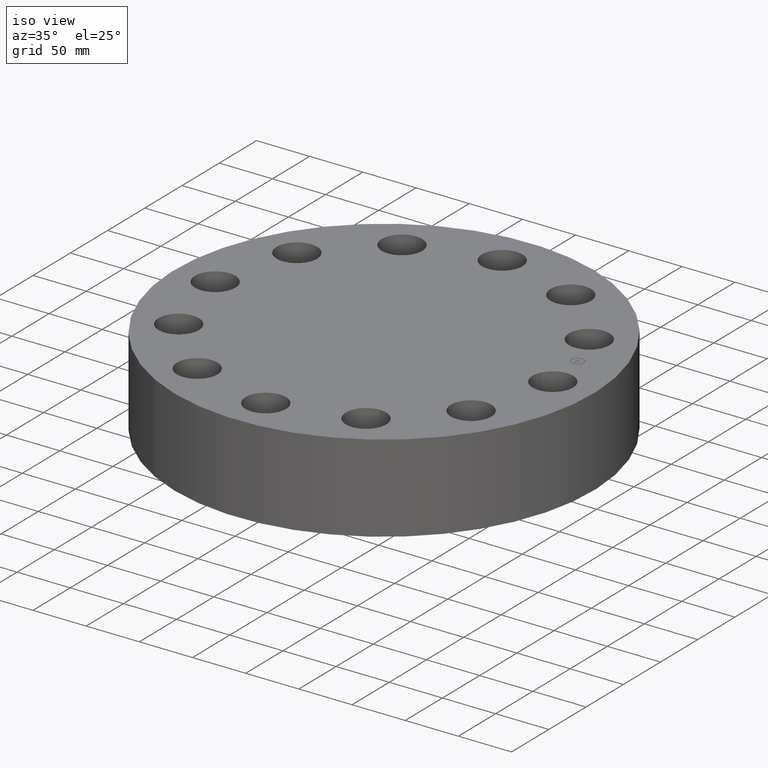
[diagram: clean part render]
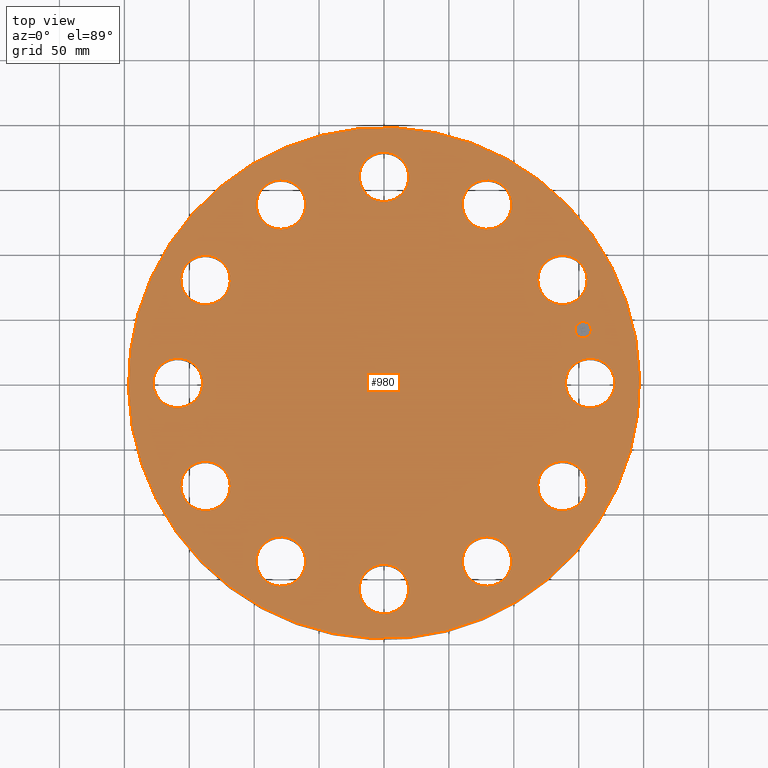
[diagram: tour spotlight — one face highlighted and labeled with its STEP entity id]
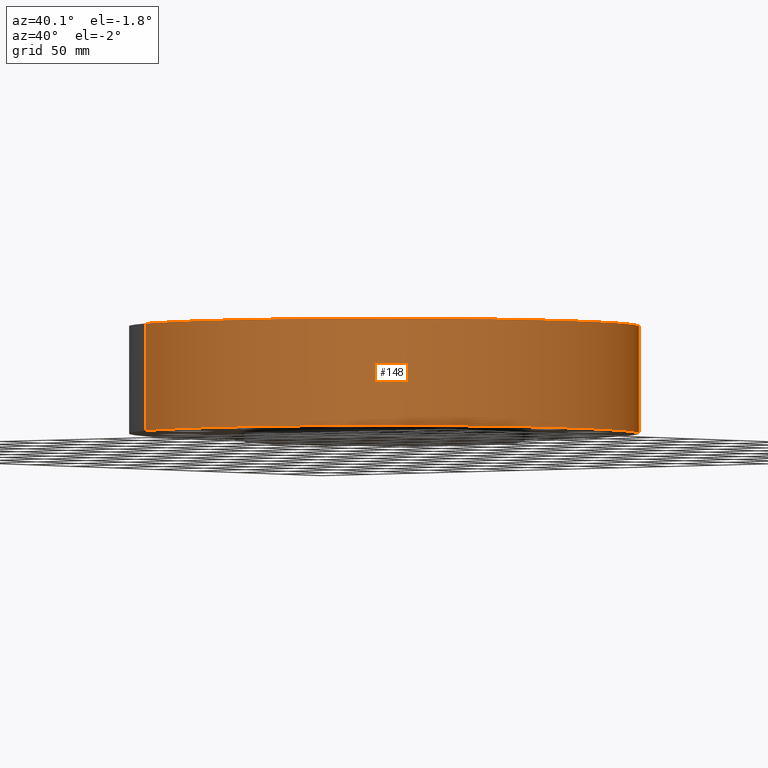
[diagram: tour spotlight — one face highlighted and labeled with its STEP entity id]
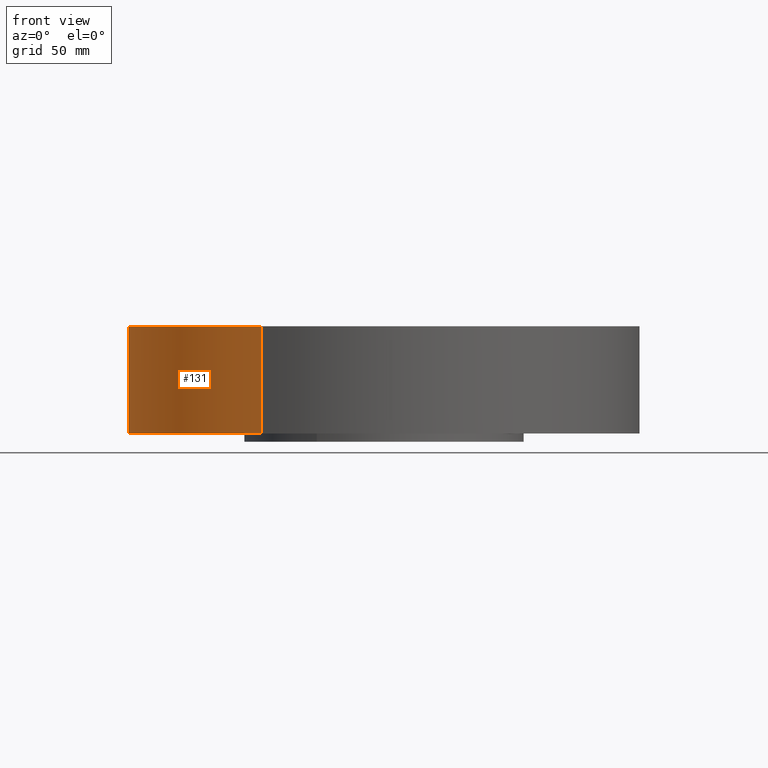
[diagram: tour spotlight — one face highlighted and labeled with its STEP entity id]
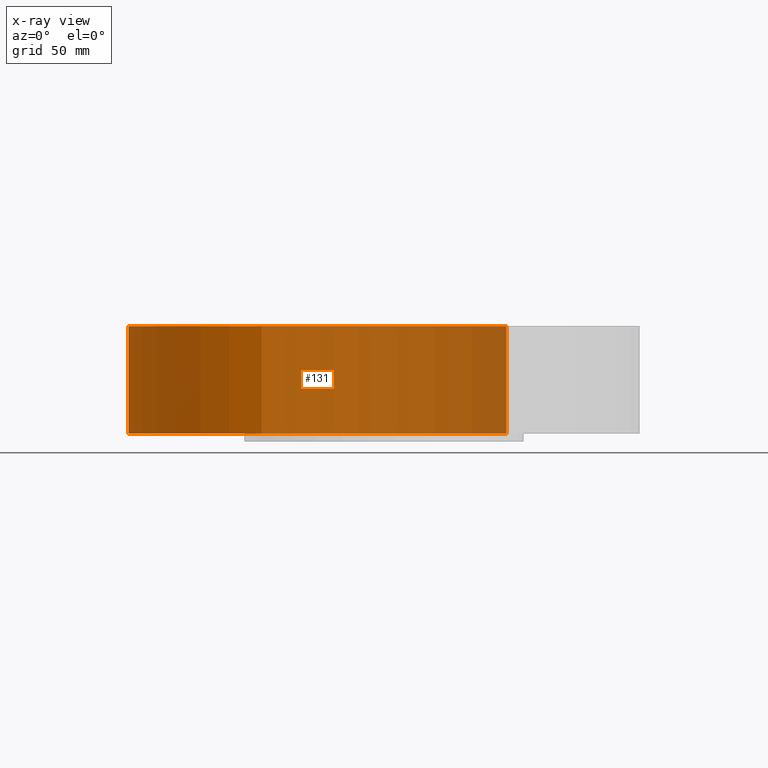
[diagram: x-ray of the same camera — body ghosted, this tour face saturated]
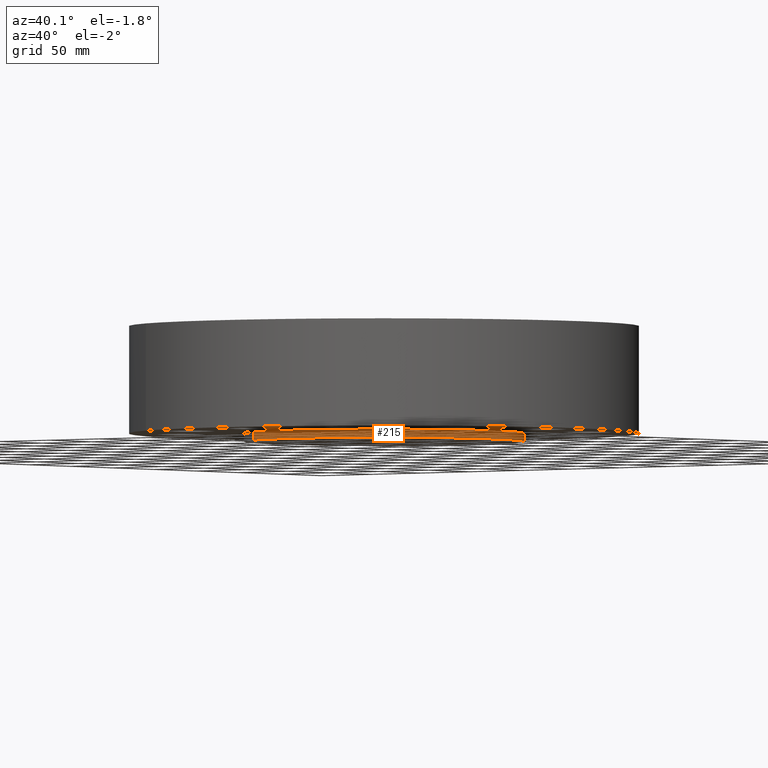
[diagram: tour spotlight — one face highlighted and labeled with its STEP entity id]
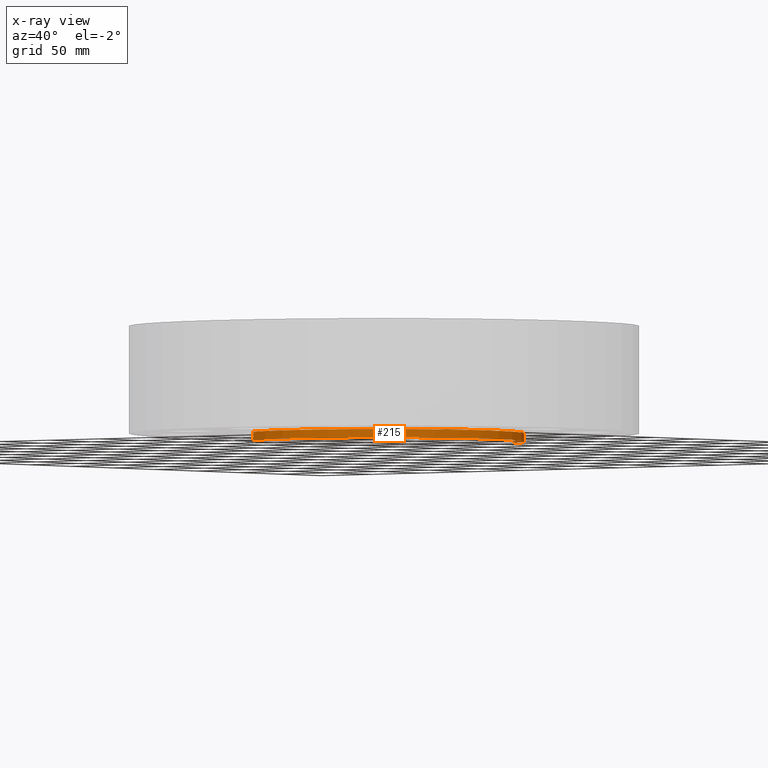
[diagram: x-ray of the same camera — body ghosted, this tour face saturated]
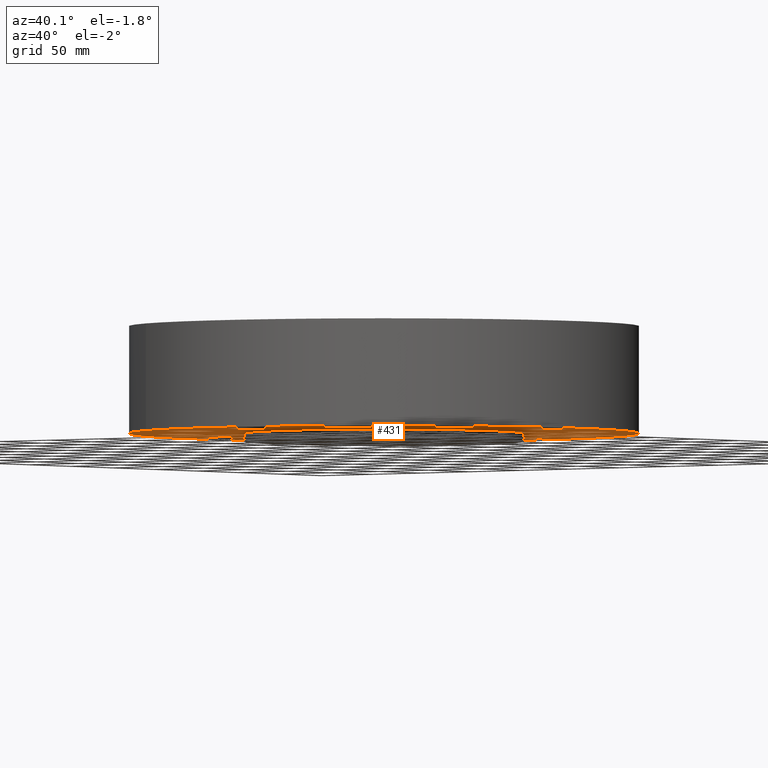
[diagram: tour spotlight — one face highlighted and labeled with its STEP entity id]
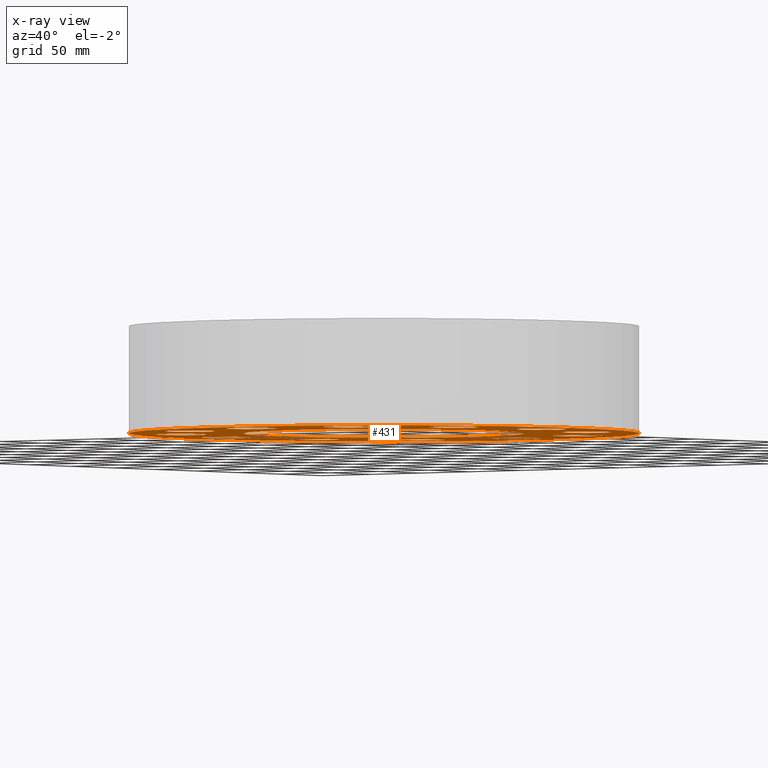
[diagram: x-ray of the same camera — body ghosted, this tour face saturated]
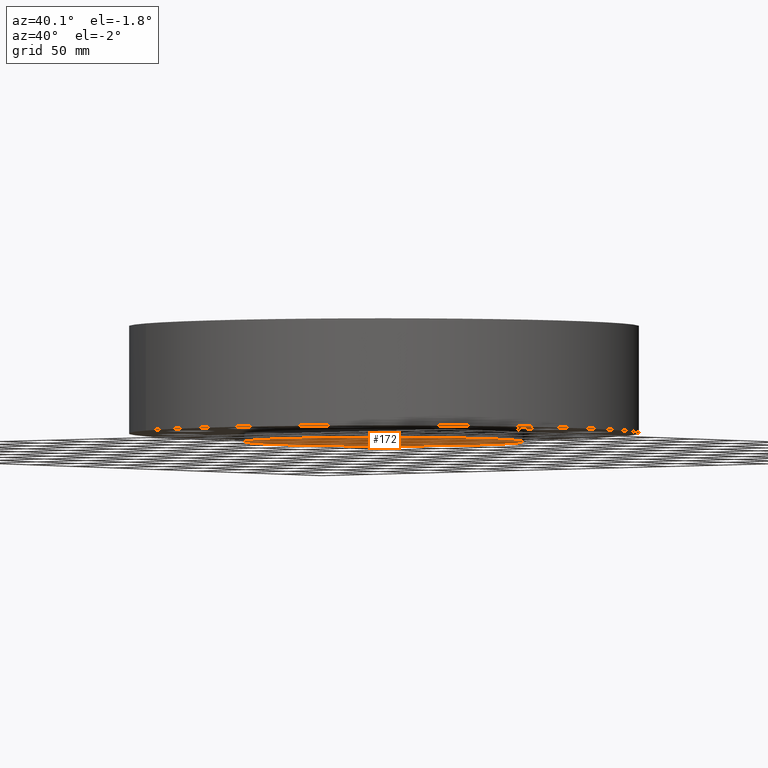
[diagram: tour spotlight — one face highlighted and labeled with its STEP entity id]
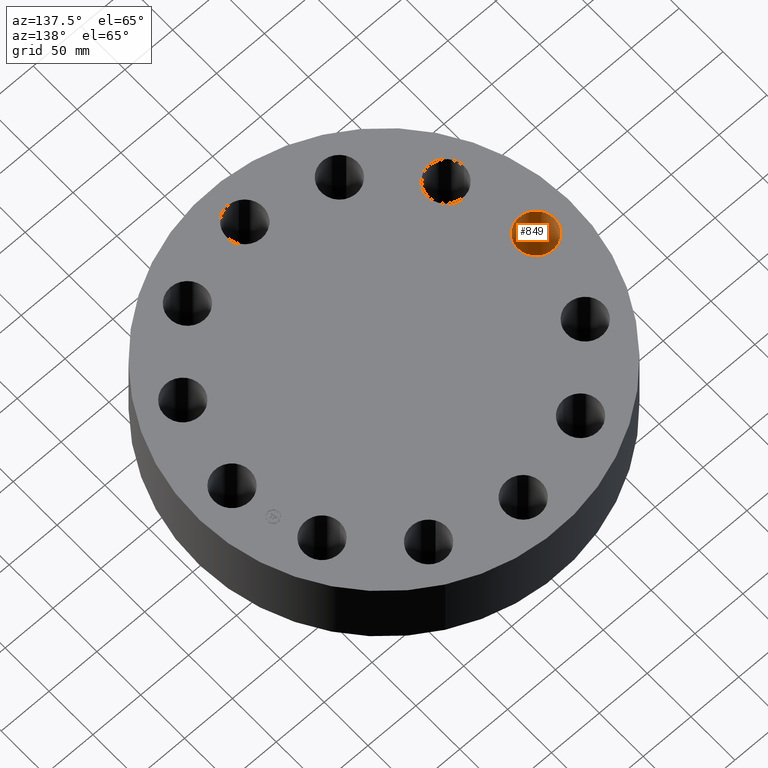
[diagram: tour spotlight — one face highlighted and labeled with its STEP entity id]
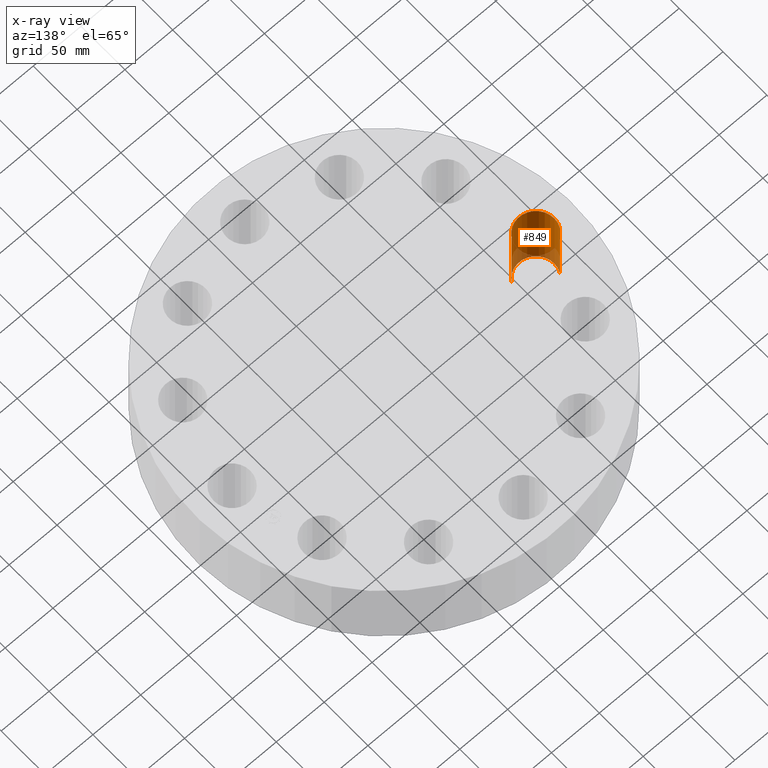
[diagram: x-ray of the same camera — body ghosted, this tour face saturated]
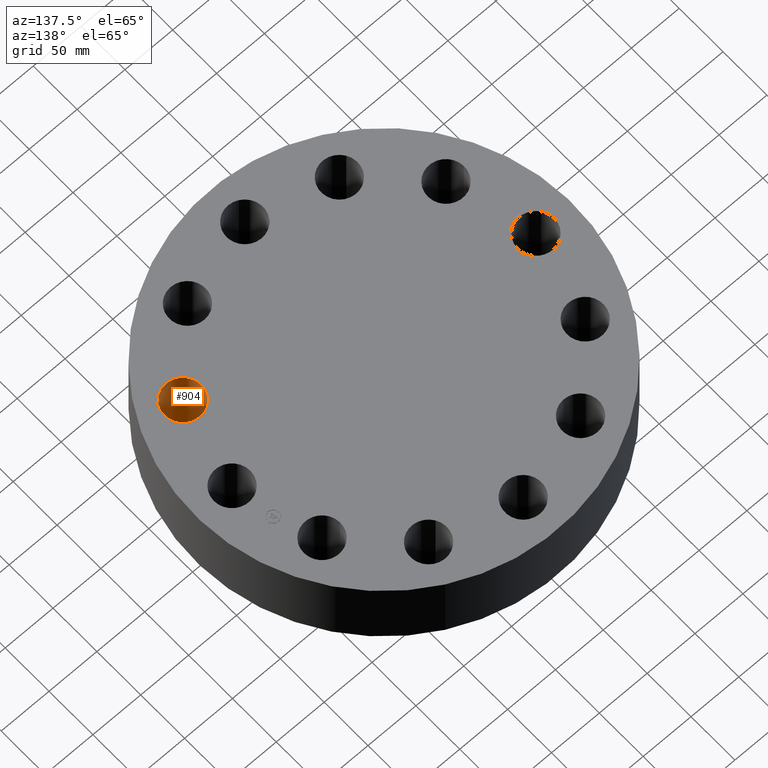
[diagram: tour spotlight — one face highlighted and labeled with its STEP entity id]
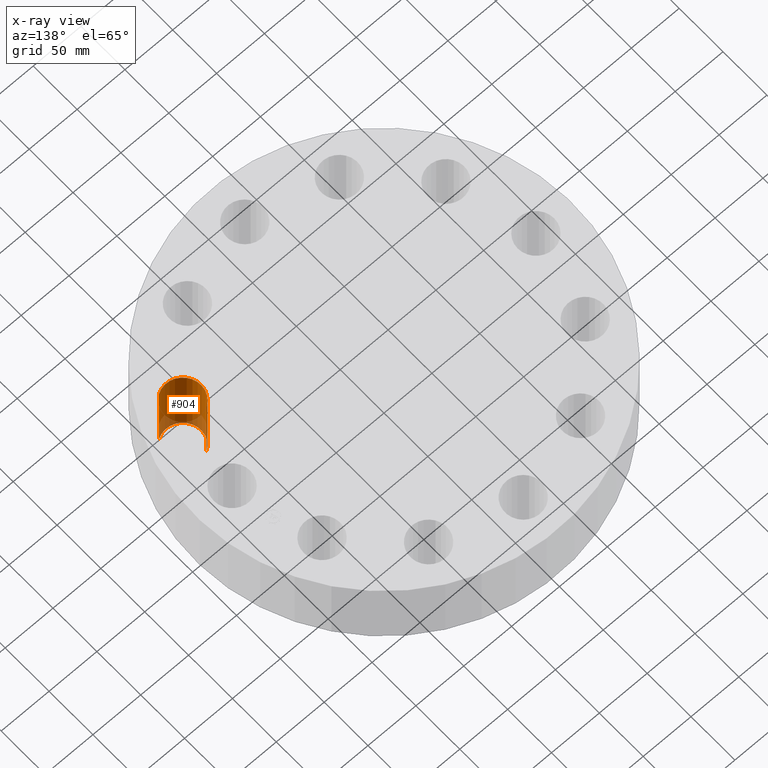
[diagram: x-ray of the same camera — body ghosted, this tour face saturated]
A machine part: a face-by-face anatomy tour. The part has 416 B-rep faces; the first image is the clean iso view, then the 8 largest visible faces are spotlighted one at a time (largest first), each with its STEP entity span.

Face 1 — top view, entity #980. In plain terms, the highlighted planar face has unit normal (0, 0, -1).
Definition (entity closure, byte-faithful):
#65=AXIS2_PLACEMENT_3D('Circle Axis2P3D',#63,#64,$) ;
#82=AXIS2_PLACEMENT_3D('Circle Axis2P3D',#80,#81,$) ;
#115=AXIS2_PLACEMENT_3D('Circle Axis2P3D',#113,#114,$) ;
#139=AXIS2_PLACEMENT_3D('Circle Axis2P3D',#137,#138,$) ;
#453=AXIS2_PLACEMENT_3D('Circle Axis2P3D',#451,#452,$) ;
#465=AXIS2_PLACEMENT_3D('Circle Axis2P3D',#463,#464,$) ;
#496=AXIS2_PLACEMENT_3D('Circle Axis2P3D',#494,#495,$) ;
#508=AXIS2_PLACEMENT_3D('Circle Axis2P3D',#506,#507,$) ;
#539=AXIS2_PLACEMENT_3D('Circle Axis2P3D',#537,#538,$) ;
#551=AXIS2_PLACEMENT_3D('Circle Axis2P3D',#549,#550,$) ;
#582=AXIS2_PLACEMENT_3D('Circle Axis2P3D',#580,#581,$) ;
#594=AXIS2_PLACEMENT_3D('Circle Axis2P3D',#592,#593,$) ;
#625=AXIS2_PLACEMENT_3D('Circle Axis2P3D',#623,#624,$) ;
#637=AXIS2_PLACEMENT_3D('Circle Axis2P3D',#635,#636,$) ;
#668=AXIS2_PLACEMENT_3D('Circle Axis2P3D',#666,#667,$) ;
#680=AXIS2_PLACEMENT_3D('Circle Axis2P3D',#678,#679,$) ;
#711=AXIS2_PLACEMENT_3D('Circle Axis2P3D',#709,#710,$) ;
#723=AXIS2_PLACEMENT_3D('Circle Axis2P3D',#721,#722,$) ;
#754=AXIS2_PLACEMENT_3D('Circle Axis2P3D',#752,#753,$) ;
#766=AXIS2_PLACEMENT_3D('Circle Axis2P3D',#764,#765,$) ;
#797=AXIS2_PLACEMENT_3D('Circle Axis2P3D',#795,#796,$) ;
#809=AXIS2_PLACEMENT_3D('Circle Axis2P3D',#807,#808,$) ;
#840=AXIS2_PLACEMENT_3D('Circle Axis2P3D',#838,#839,$) ;
#852=AXIS2_PLACEMENT_3D('Circle Axis2P3D',#850,#851,$) ;
#883=AXIS2_PLACEMENT_3D('Circle Axis2P3D',#881,#882,$) ;
#895=AXIS2_PLACEMENT_3D('Circle Axis2P3D',#893,#894,$) ;
#908=AXIS2_PLACEMENT_3D('Plane Axis2P3D',#905,#906,#907) ;
#964=AXIS2_PLACEMENT_3D('Circle Axis2P3D',#962,#963,$) ;
#973=AXIS2_PLACEMENT_3D('Circle Axis2P3D',#971,#972,$) ;
#46=CARTESIAN_POINT('Vertex',(5.5918130786,0.359569153955,3.25000000001)) ;
#60=CARTESIAN_POINT('Vertex',(6.90818692145,-0.359569153955,3.25000000001)) ;
#63=CARTESIAN_POINT('Axis2P3D Location',(6.25000000003,0.,3.25000000001)) ;
#80=CARTESIAN_POINT('Axis2P3D Location',(6.25000000003,0.,3.25000000001)) ;
#110=CARTESIAN_POINT('Vertex',(-3.7155479242,-6.80126485468,3.25000000001)) ;
#113=CARTESIAN_POINT('Axis2P3D Location',(0.,0.,3.25000000001)) ;
#117=CARTESIAN_POINT('Vertex',(3.7155479242,6.80126485468,3.25000000001)) ;
#137=CARTESIAN_POINT('Axis2P3D Location',(0.,0.,3.25000000001)) ;
#441=CARTESIAN_POINT('Vertex',(-5.02243675626,2.48451051756,3.25000000001)) ;
#448=CARTESIAN_POINT('Vertex',(-5.80288079109,3.76548948246,3.25000000001)) ;
#451=CARTESIAN_POINT('Axis2P3D Location',(-5.41265877367,3.12500000001,3.25000000001)) ;
#463=CARTESIAN_POINT('Axis2P3D Location',(-5.41265877367,3.12500000001,3.25000000001)) ;
#484=CARTESIAN_POINT('Vertex',(3.10730256104,-4.66286760231,3.25000000001)) ;
#491=CARTESIAN_POINT('Vertex',(3.14269743898,-6.16244994504,3.25000000001)) ;
#494=CARTESIAN_POINT('Axis2P3D Location',(3.12500000001,-5.41265877367,3.25000000001)) ;
#506=CARTESIAN_POINT('Axis2P3D Location',(3.12500000001,-5.41265877367,3.25000000001)) ;
#527=CARTESIAN_POINT('Vertex',(-3.10730256104,4.66286760231,3.25000000001)) ;
#534=CARTESIAN_POINT('Vertex',(-3.14269743898,6.16244994504,3.25000000001)) ;
#537=CARTESIAN_POINT('Axis2P3D Location',(-3.12500000001,5.41265877367,3.25000000001)) ;
#549=CARTESIAN_POINT('Axis2P3D Location',(-3.12500000001,5.41265877367,3.25000000001)) ;
#570=CARTESIAN_POINT('Vertex',(0.359569153955,-5.5918130786,3.25000000001)) ;
#577=CARTESIAN_POINT('Vertex',(-0.359569153955,-6.90818692145,3.25000000001)) ;
#580=CARTESIAN_POINT('Axis2P3D Location',(-7.3626281347E-016,-6.25000000003,3.25000000001)) ;
#592=CARTESIAN_POINT('Axis2P3D Location',(-7.3626281347E-016,-6.25000000003,3.25000000001)) ;
#613=CARTESIAN_POINT('Vertex',(-0.359569153955,5.5918130786,3.25000000001)) ;
#620=CARTESIAN_POINT('Vertex',(0.359569153955,6.90818692145,3.25000000001)) ;
#623=CARTESIAN_POINT('Axis2P3D Location',(-1.14810637421E-015,6.25000000003,3.25000000001)) ;
#635=CARTESIAN_POINT('Axis2P3D Location',(-1.14810637421E-015,6.25000000003,3.25000000001)) ;
#656=CARTESIAN_POINT('Vertex',(-2.48451051756,-5.02243675626,3.25000000001)) ;
#663=CARTESIAN_POINT('Vertex',(-3.76548948246,-5.80288079109,3.25000000001)) ;
#666=CARTESIAN_POINT('Axis2P3D Location',(-3.12500000001,-5.41265877367,3.25000000001)) ;
#678=CARTESIAN_POINT('Axis2P3D Location',(-3.12500000001,-5.41265877367,3.25000000001)) ;
#699=CARTESIAN_POINT('Vertex',(2.48451051756,5.02243675626,3.25000000001)) ;
#706=CARTESIAN_POINT('Vertex',(3.76548948246,5.80288079109,3.25000000001)) ;
#709=CARTESIAN_POINT('Axis2P3D Location',(3.12500000001,5.41265877367,3.25000000001)) ;
#721=CARTESIAN_POINT('Axis2P3D Location',(3.12500000001,5.41265877367,3.25000000001)) ;
#742=CARTESIAN_POINT('Vertex',(-4.66286760231,-3.10730256104,3.25000000001)) ;
#749=CARTESIAN_POINT('Vertex',(-6.16244994504,-3.14269743898,3.25000000001)) ;
#752=CARTESIAN_POINT('Axis2P3D Location',(-5.41265877367,-3.12500000001,3.25000000001)) ;
#764=CARTESIAN_POINT('Axis2P3D Location',(-5.41265877367,-3.12500000001,3.25000000001)) ;
#785=CARTESIAN_POINT('Vertex',(4.66286760231,3.10730256104,3.25000000001)) ;
#792=CARTESIAN_POINT('Vertex',(6.16244994504,3.14269743898,3.25000000001)) ;
#795=CARTESIAN_POINT('Axis2P3D Location',(5.41265877367,3.12500000001,3.25000000001)) ;
#807=CARTESIAN_POINT('Axis2P3D Location',(5.41265877367,3.12500000001,3.25000000001)) ;
#828=CARTESIAN_POINT('Vertex',(-5.5918130786,-0.359569153955,3.25000000001)) ;
#835=CARTESIAN_POINT('Vertex',(-6.90818692145,0.359569153955,3.25000000001)) ;
#838=CARTESIAN_POINT('Axis2P3D Location',(-6.25000000003,-7.6540424947E-016,3.25000000001)) ;
#850=CARTESIAN_POINT('Axis2P3D Location',(-6.25000000003,-7.6540424947E-016,3.25000000001)) ;
#871=CARTESIAN_POINT('Vertex',(5.02243675626,-2.48451051756,3.25000000001)) ;
#878=CARTESIAN_POINT('Vertex',(5.80288079109,-3.76548948246,3.25000000001)) ;
#881=CARTESIAN_POINT('Axis2P3D Location',(5.41265877367,-3.12500000001,3.25000000001)) ;
#893=CARTESIAN_POINT('Axis2P3D Location',(5.41265877367,-3.12500000001,3.25000000001)) ;
#905=CARTESIAN_POINT('Axis2P3D Location',(0.,7.75000000003,3.25000000001)) ;
#962=CARTESIAN_POINT('Axis2P3D Location',(6.03703641433,1.6176190319,3.25000000001)) ;
#966=CARTESIAN_POINT('Vertex',(5.97297870067,1.8566856739,3.25000000001)) ;
#968=CARTESIAN_POINT('Vertex',(6.10109412799,1.37855238989,3.25000000001)) ;
#971=CARTESIAN_POINT('Axis2P3D Location',(6.03703641433,1.6176190319,3.25000000001)) ;
#64=DIRECTION('Axis2P3D Direction',(0.,-0.,-0.0393700787402)) ;
#81=DIRECTION('Axis2P3D Direction',(0.,-0.,-0.0393700787402)) ;
#114=DIRECTION('Axis2P3D Direction',(0.,0.,-0.0393700787402)) ;
#138=DIRECTION('Axis2P3D Direction',(0.,0.,-0.0393700787402)) ;
#452=DIRECTION('Axis2P3D Direction',(0.,0.,-0.0393700787402)) ;
#464=DIRECTION('Axis2P3D Direction',(0.,0.,-0.0393700787402)) ;
#495=DIRECTION('Axis2P3D Direction',(0.,-0.,-0.0393700787402)) ;
#507=DIRECTION('Axis2P3D Direction',(0.,-0.,-0.0393700787402)) ;
#538=DIRECTION('Axis2P3D Direction',(0.,0.,-0.0393700787402)) ;
#550=DIRECTION('Axis2P3D Direction',(0.,0.,-0.0393700787402)) ;
#581=DIRECTION('Axis2P3D Direction',(0.,-0.,-0.0393700787402)) ;
#593=DIRECTION('Axis2P3D Direction',(0.,-0.,-0.0393700787402)) ;
#624=DIRECTION('Axis2P3D Direction',(0.,0.,-0.0393700787402)) ;
#636=DIRECTION('Axis2P3D Direction',(0.,0.,-0.0393700787402)) ;
#667=DIRECTION('Axis2P3D Direction',(-0.,0.,-0.0393700787402)) ;
#679=DIRECTION('Axis2P3D Direction',(-0.,0.,-0.0393700787402)) ;
#710=DIRECTION('Axis2P3D Direction',(0.,0.,-0.0393700787402)) ;
#722=DIRECTION('Axis2P3D Direction',(0.,0.,-0.0393700787402)) ;
#753=DIRECTION('Axis2P3D Direction',(-0.,0.,-0.0393700787402)) ;
#765=DIRECTION('Axis2P3D Direction',(-0.,0.,-0.0393700787402)) ;
#796=DIRECTION('Axis2P3D Direction',(0.,0.,-0.0393700787402)) ;
#808=DIRECTION('Axis2P3D Direction',(0.,0.,-0.0393700787402)) ;
#839=DIRECTION('Axis2P3D Direction',(-0.,0.,-0.0393700787402)) ;
#851=DIRECTION('Axis2P3D Direction',(-0.,0.,-0.0393700787402)) ;
#882=DIRECTION('Axis2P3D Direction',(0.,-0.,-0.0393700787402)) ;
#894=DIRECTION('Axis2P3D Direction',(0.,-0.,-0.0393700787402)) ;
#906=DIRECTION('Axis2P3D Direction',(0.,0.,-0.0393700787402)) ;
#907=DIRECTION('Axis2P3D XDirection',(0.0393700787402,0.,0.)) ;
#963=DIRECTION('Axis2P3D Direction',(0.,0.,-0.0393700787402)) ;
#972=DIRECTION('Axis2P3D Direction',(0.,0.,-0.0393700787402)) ;
#911=ORIENTED_EDGE('',*,*,#141,.F.) ;
#912=ORIENTED_EDGE('',*,*,#119,.F.) ;
#915=ORIENTED_EDGE('',*,*,#67,.T.) ;
#916=ORIENTED_EDGE('',*,*,#84,.T.) ;
#919=ORIENTED_EDGE('',*,*,#897,.T.) ;
#920=ORIENTED_EDGE('',*,*,#885,.T.) ;
#923=ORIENTED_EDGE('',*,*,#510,.T.) ;
#924=ORIENTED_EDGE('',*,*,#498,.T.) ;
#927=ORIENTED_EDGE('',*,*,#596,.T.) ;
#928=ORIENTED_EDGE('',*,*,#584,.T.) ;
#931=ORIENTED_EDGE('',*,*,#682,.T.) ;
#932=ORIENTED_EDGE('',*,*,#670,.T.) ;
#935=ORIENTED_EDGE('',*,*,#768,.T.) ;
#936=ORIENTED_EDGE('',*,*,#756,.T.) ;
#939=ORIENTED_EDGE('',*,*,#854,.T.) ;
#940=ORIENTED_EDGE('',*,*,#842,.T.) ;
#943=ORIENTED_EDGE('',*,*,#467,.T.) ;
#944=ORIENTED_EDGE('',*,*,#455,.T.) ;
#947=ORIENTED_EDGE('',*,*,#553,.T.) ;
#948=ORIENTED_EDGE('',*,*,#541,.T.) ;
#951=ORIENTED_EDGE('',*,*,#639,.T.) ;
#952=ORIENTED_EDGE('',*,*,#627,.T.) ;
#955=ORIENTED_EDGE('',*,*,#725,.T.) ;
#956=ORIENTED_EDGE('',*,*,#713,.T.) ;
#959=ORIENTED_EDGE('',*,*,#811,.T.) ;
#960=ORIENTED_EDGE('',*,*,#799,.T.) ;
#977=ORIENTED_EDGE('',*,*,#970,.T.) ;
#978=ORIENTED_EDGE('',*,*,#975,.T.) ;
#917=FACE_BOUND('',#914,.T.) ;
#921=FACE_BOUND('',#918,.T.) ;
#925=FACE_BOUND('',#922,.T.) ;
#929=FACE_BOUND('',#926,.T.) ;
#933=FACE_BOUND('',#930,.T.) ;
#937=FACE_BOUND('',#934,.T.) ;
#941=FACE_BOUND('',#938,.T.) ;
#945=FACE_BOUND('',#942,.T.) ;
#949=FACE_BOUND('',#946,.T.) ;
#953=FACE_BOUND('',#950,.T.) ;
#957=FACE_BOUND('',#954,.T.) ;
#961=FACE_BOUND('',#958,.T.) ;
#979=FACE_BOUND('',#976,.T.) ;
#980=ADVANCED_FACE('PartBody',(#913,#917,#921,#925,#929,#933,#937,#941,#945,#949,#953,#957,#961,#979),#909,.F.) ;
#66=CIRCLE('generated circle',#65,0.750000000003) ;
#83=CIRCLE('generated circle',#82,0.750000000003) ;
#116=CIRCLE('generated circle',#115,7.75000000003) ;
#140=CIRCLE('generated circle',#139,7.75000000003) ;
#454=CIRCLE('generated circle',#453,0.750000000003) ;
#466=CIRCLE('generated circle',#465,0.750000000003) ;
#497=CIRCLE('generated circle',#496,0.750000000003) ;
#509=CIRCLE('generated circle',#508,0.750000000003) ;
#540=CIRCLE('generated circle',#539,0.750000000003) ;
#552=CIRCLE('generated circle',#551,0.750000000003) ;
#583=CIRCLE('generated circle',#582,0.750000000003) ;
#595=CIRCLE('generated circle',#594,0.750000000003) ;
#626=CIRCLE('generated circle',#625,0.750000000003) ;
#638=CIRCLE('generated circle',#637,0.750000000003) ;
#669=CIRCLE('generated circle',#668,0.750000000003) ;
#681=CIRCLE('generated circle',#680,0.750000000003) ;
#712=CIRCLE('generated circle',#711,0.750000000003) ;
#724=CIRCLE('generated circle',#723,0.750000000003) ;
#755=CIRCLE('generated circle',#754,0.750000000003) ;
#767=CIRCLE('generated circle',#766,0.750000000003) ;
#798=CIRCLE('generated circle',#797,0.750000000003) ;
#810=CIRCLE('generated circle',#809,0.750000000003) ;
#841=CIRCLE('generated circle',#840,0.750000000003) ;
#853=CIRCLE('generated circle',#852,0.750000000003) ;
#884=CIRCLE('generated circle',#883,0.750000000003) ;
#896=CIRCLE('generated circle',#895,0.750000000003) ;
#965=CIRCLE('generated circle',#964,0.247500000001) ;
#974=CIRCLE('generated circle',#973,0.247500000001) ;
#67=EDGE_CURVE('',#47,#61,#66,.T.) ;
#84=EDGE_CURVE('',#61,#47,#83,.T.) ;
#119=EDGE_CURVE('',#111,#118,#116,.T.) ;
#141=EDGE_CURVE('',#118,#111,#140,.T.) ;
#455=EDGE_CURVE('',#442,#449,#454,.T.) ;
#467=EDGE_CURVE('',#449,#442,#466,.T.) ;
#498=EDGE_CURVE('',#485,#492,#497,.T.) ;
#510=EDGE_CURVE('',#492,#485,#509,.T.) ;
#541=EDGE_CURVE('',#528,#535,#540,.T.) ;
#553=EDGE_CURVE('',#535,#528,#552,.T.) ;
#584=EDGE_CURVE('',#571,#578,#583,.T.) ;
#596=EDGE_CURVE('',#578,#571,#595,.T.) ;
#627=EDGE_CURVE('',#614,#621,#626,.T.) ;
#639=EDGE_CURVE('',#621,#614,#638,.T.) ;
#670=EDGE_CURVE('',#657,#664,#669,.T.) ;
#682=EDGE_CURVE('',#664,#657,#681,.T.) ;
#713=EDGE_CURVE('',#700,#707,#712,.T.) ;
#725=EDGE_CURVE('',#707,#700,#724,.T.) ;
#756=EDGE_CURVE('',#743,#750,#755,.T.) ;
#768=EDGE_CURVE('',#750,#743,#767,.T.) ;
#799=EDGE_CURVE('',#786,#793,#798,.T.) ;
#811=EDGE_CURVE('',#793,#786,#810,.T.) ;
#842=EDGE_CURVE('',#829,#836,#841,.T.) ;
#854=EDGE_CURVE('',#836,#829,#853,.T.) ;
#885=EDGE_CURVE('',#872,#879,#884,.T.) ;
#897=EDGE_CURVE('',#879,#872,#896,.T.) ;
#970=EDGE_CURVE('',#967,#969,#965,.T.) ;
#975=EDGE_CURVE('',#969,#967,#974,.T.) ;
#910=EDGE_LOOP('',(#911,#912)) ;
#914=EDGE_LOOP('',(#915,#916)) ;
#918=EDGE_LOOP('',(#919,#920)) ;
#922=EDGE_LOOP('',(#923,#924)) ;
#926=EDGE_LOOP('',(#927,#928)) ;
#930=EDGE_LOOP('',(#931,#932)) ;
#934=EDGE_LOOP('',(#935,#936)) ;
#938=EDGE_LOOP('',(#939,#940)) ;
#942=EDGE_LOOP('',(#943,#944)) ;
#946=EDGE_LOOP('',(#947,#948)) ;
#950=EDGE_LOOP('',(#951,#952)) ;
#954=EDGE_LOOP('',(#955,#956)) ;
#958=EDGE_LOOP('',(#959,#960)) ;
#976=EDGE_LOOP('',(#977,#978)) ;
#913=FACE_OUTER_BOUND('',#910,.T.) ;
#909=PLANE('',#908) ;
#47=VERTEX_POINT('',#46) ;
#61=VERTEX_POINT('',#60) ;
#111=VERTEX_POINT('',#110) ;
#118=VERTEX_POINT('',#117) ;
#442=VERTEX_POINT('',#441) ;
#449=VERTEX_POINT('',#448) ;
#485=VERTEX_POINT('',#484) ;
#492=VERTEX_POINT('',#491) ;
#528=VERTEX_POINT('',#527) ;
#535=VERTEX_POINT('',#534) ;
#571=VERTEX_POINT('',#570) ;
#578=VERTEX_POINT('',#577) ;
#614=VERTEX_POINT('',#613) ;
#621=VERTEX_POINT('',#620) ;
#657=VERTEX_POINT('',#656) ;
#664=VERTEX_POINT('',#663) ;
#700=VERTEX_POINT('',#699) ;
#707=VERTEX_POINT('',#706) ;
#743=VERTEX_POINT('',#742) ;
#750=VERTEX_POINT('',#749) ;
#786=VERTEX_POINT('',#785) ;
#793=VERTEX_POINT('',#792) ;
#829=VERTEX_POINT('',#828) ;
#836=VERTEX_POINT('',#835) ;
#872=VERTEX_POINT('',#871) ;
#879=VERTEX_POINT('',#878) ;
#967=VERTEX_POINT('',#966) ;
#969=VERTEX_POINT('',#968) ;

Face 2 — auxiliary view, entity #148. In plain terms, the highlighted cylindrical surface (partial cylindrical patch) has radius 196.85 mm, axis along (0, 0, -1).
Definition (entity closure, byte-faithful):
#95=AXIS2_PLACEMENT_3D('Cylinder Axis2P3D',#92,#93,#94) ;
#134=AXIS2_PLACEMENT_3D('Circle Axis2P3D',#132,#133,$) ;
#139=AXIS2_PLACEMENT_3D('Circle Axis2P3D',#137,#138,$) ;
#92=CARTESIAN_POINT('Axis2P3D Location',(0.,0.,1.50000000001)) ;
#101=CARTESIAN_POINT('Vertex',(-3.7155479242,-6.80126485468,8.39223703654E-016)) ;
#103=CARTESIAN_POINT('Vertex',(3.7155479242,6.80126485468,8.39223703654E-016)) ;
#106=CARTESIAN_POINT('Line Origine',(-3.7155479242,-6.80126485468,1.62500000001)) ;
#110=CARTESIAN_POINT('Vertex',(-3.7155479242,-6.80126485468,3.25000000001)) ;
#117=CARTESIAN_POINT('Vertex',(3.7155479242,6.80126485468,3.25000000001)) ;
#120=CARTESIAN_POINT('Line Origine',(3.7155479242,6.80126485468,1.62500000001)) ;
#132=CARTESIAN_POINT('Axis2P3D Location',(0.,0.,8.39223703654E-016)) ;
#137=CARTESIAN_POINT('Axis2P3D Location',(0.,0.,3.25000000001)) ;
#93=DIRECTION('Axis2P3D Direction',(0.,0.,-0.0393700787402)) ;
#94=DIRECTION('Axis2P3D XDirection',(0.0188750212049,0.0345504945626,0.)) ;
#107=DIRECTION('Vector Direction',(0.,0.,-0.0393700787402)) ;
#121=DIRECTION('Vector Direction',(0.,0.,-0.0393700787402)) ;
#133=DIRECTION('Axis2P3D Direction',(0.,0.,-0.0393700787402)) ;
#138=DIRECTION('Axis2P3D Direction',(0.,0.,-0.0393700787402)) ;
#108=VECTOR('Line Direction',#107,0.0393700787402) ;
#122=VECTOR('Line Direction',#121,0.0393700787402) ;
#143=ORIENTED_EDGE('',*,*,#136,.F.) ;
#144=ORIENTED_EDGE('',*,*,#124,.T.) ;
#145=ORIENTED_EDGE('',*,*,#141,.T.) ;
#146=ORIENTED_EDGE('',*,*,#112,.F.) ;
#148=ADVANCED_FACE('PartBody',(#147),#96,.T.) ;
#135=CIRCLE('generated circle',#134,7.75000000003) ;
#140=CIRCLE('generated circle',#139,7.75000000003) ;
#96=CYLINDRICAL_SURFACE('generated cylinder',#95,7.75000000003) ;
#112=EDGE_CURVE('',#102,#111,#109,.F.) ;
#124=EDGE_CURVE('',#104,#118,#123,.F.) ;
#136=EDGE_CURVE('',#104,#102,#135,.T.) ;
#141=EDGE_CURVE('',#118,#111,#140,.T.) ;
#142=EDGE_LOOP('',(#143,#144,#145,#146)) ;
#147=FACE_OUTER_BOUND('',#142,.T.) ;
#109=LINE('Line',#106,#108) ;
#123=LINE('Line',#120,#122) ;
#102=VERTEX_POINT('',#101) ;
#104=VERTEX_POINT('',#103) ;
#111=VERTEX_POINT('',#110) ;
#118=VERTEX_POINT('',#117) ;

Face 3 — front view, entity #131. An x-ray twin of the same camera follows (body ghosted, this face saturated) — the face is partly hidden behind the body. In plain terms, the highlighted cylindrical surface (partial cylindrical patch) has radius 196.85 mm, axis along (0, 0, -1).
Definition (entity closure, byte-faithful):
#95=AXIS2_PLACEMENT_3D('Cylinder Axis2P3D',#92,#93,#94) ;
#99=AXIS2_PLACEMENT_3D('Circle Axis2P3D',#97,#98,$) ;
#115=AXIS2_PLACEMENT_3D('Circle Axis2P3D',#113,#114,$) ;
#92=CARTESIAN_POINT('Axis2P3D Location',(0.,0.,1.50000000001)) ;
#97=CARTESIAN_POINT('Axis2P3D Location',(0.,0.,8.39223703654E-016)) ;
#101=CARTESIAN_POINT('Vertex',(-3.7155479242,-6.80126485468,8.39223703654E-016)) ;
#103=CARTESIAN_POINT('Vertex',(3.7155479242,6.80126485468,8.39223703654E-016)) ;
#106=CARTESIAN_POINT('Line Origine',(-3.7155479242,-6.80126485468,1.62500000001)) ;
#110=CARTESIAN_POINT('Vertex',(-3.7155479242,-6.80126485468,3.25000000001)) ;
#113=CARTESIAN_POINT('Axis2P3D Location',(0.,0.,3.25000000001)) ;
#117=CARTESIAN_POINT('Vertex',(3.7155479242,6.80126485468,3.25000000001)) ;
#120=CARTESIAN_POINT('Line Origine',(3.7155479242,6.80126485468,1.62500000001)) ;
#93=DIRECTION('Axis2P3D Direction',(0.,0.,-0.0393700787402)) ;
#94=DIRECTION('Axis2P3D XDirection',(0.0188750212049,0.0345504945626,0.)) ;
#98=DIRECTION('Axis2P3D Direction',(0.,0.,-0.0393700787402)) ;
#107=DIRECTION('Vector Direction',(0.,0.,-0.0393700787402)) ;
#114=DIRECTION('Axis2P3D Direction',(0.,0.,-0.0393700787402)) ;
#121=DIRECTION('Vector Direction',(0.,0.,-0.0393700787402)) ;
#108=VECTOR('Line Direction',#107,0.0393700787402) ;
#122=VECTOR('Line Direction',#121,0.0393700787402) ;
#126=ORIENTED_EDGE('',*,*,#105,.F.) ;
#127=ORIENTED_EDGE('',*,*,#112,.T.) ;
#128=ORIENTED_EDGE('',*,*,#119,.T.) ;
#129=ORIENTED_EDGE('',*,*,#124,.F.) ;
#131=ADVANCED_FACE('PartBody',(#130),#96,.T.) ;
#100=CIRCLE('generated circle',#99,7.75000000003) ;
#116=CIRCLE('generated circle',#115,7.75000000003) ;
#96=CYLINDRICAL_SURFACE('generated cylinder',#95,7.75000000003) ;
#105=EDGE_CURVE('',#102,#104,#100,.T.) ;
#112=EDGE_CURVE('',#102,#111,#109,.F.) ;
#119=EDGE_CURVE('',#111,#118,#116,.T.) ;
#124=EDGE_CURVE('',#104,#118,#123,.F.) ;
#125=EDGE_LOOP('',(#126,#127,#128,#129)) ;
#130=FACE_OUTER_BOUND('',#125,.T.) ;
#109=LINE('Line',#106,#108) ;
#123=LINE('Line',#120,#122) ;
#102=VERTEX_POINT('',#101) ;
#104=VERTEX_POINT('',#103) ;
#111=VERTEX_POINT('',#110) ;
#118=VERTEX_POINT('',#117) ;

Face 4 — auxiliary view, entity #215. An x-ray twin of the same camera follows (body ghosted, this face saturated) — the face is partly hidden behind the body. In plain terms, the highlighted cylindrical surface (partial cylindrical patch) has radius 107.95 mm, axis along (0, 0, -1).
Definition (entity closure, byte-faithful):
#156=AXIS2_PLACEMENT_3D('Circle Axis2P3D',#154,#155,$) ;
#176=AXIS2_PLACEMENT_3D('Cylinder Axis2P3D',#173,#174,#175) ;
#206=AXIS2_PLACEMENT_3D('Circle Axis2P3D',#204,#205,$) ;
#154=CARTESIAN_POINT('Axis2P3D Location',(0.,0.,-0.250000000001)) ;
#158=CARTESIAN_POINT('Vertex',(2.03755853908,3.72972588805,-0.250000000001)) ;
#160=CARTESIAN_POINT('Vertex',(-2.03755853908,-3.72972588805,-0.250000000001)) ;
#173=CARTESIAN_POINT('Axis2P3D Location',(0.,0.,1.50000000001)) ;
#178=CARTESIAN_POINT('Line Origine',(-2.03755853908,-3.72972588805,-0.125000000001)) ;
#182=CARTESIAN_POINT('Vertex',(-2.03755853908,-3.72972588805,5.59482469102E-016)) ;
#189=CARTESIAN_POINT('Vertex',(2.03755853908,3.72972588805,5.59482469102E-016)) ;
#192=CARTESIAN_POINT('Line Origine',(2.03755853908,3.72972588805,-0.125000000001)) ;
#204=CARTESIAN_POINT('Axis2P3D Location',(0.,0.,5.59482469102E-016)) ;
#155=DIRECTION('Axis2P3D Direction',(0.,0.,-0.0393700787402)) ;
#174=DIRECTION('Axis2P3D Direction',(0.,0.,-0.0393700787402)) ;
#175=DIRECTION('Axis2P3D XDirection',(0.0188750212049,0.0345504945626,0.)) ;
#179=DIRECTION('Vector Direction',(0.,0.,-0.0393700787402)) ;
#193=DIRECTION('Vector Direction',(0.,0.,-0.0393700787402)) ;
#205=DIRECTION('Axis2P3D Direction',(0.,0.,-0.0393700787402)) ;
#180=VECTOR('Line Direction',#179,0.0393700787402) ;
#194=VECTOR('Line Direction',#193,0.0393700787402) ;
#210=ORIENTED_EDGE('',*,*,#162,.F.) ;
#211=ORIENTED_EDGE('',*,*,#196,.T.) ;
#212=ORIENTED_EDGE('',*,*,#208,.T.) ;
#213=ORIENTED_EDGE('',*,*,#184,.F.) ;
#215=ADVANCED_FACE('PartBody',(#214),#177,.T.) ;
#157=CIRCLE('generated circle',#156,4.25000000002) ;
#207=CIRCLE('generated circle',#206,4.25000000002) ;
#177=CYLINDRICAL_SURFACE('generated cylinder',#176,4.25000000002) ;
#162=EDGE_CURVE('',#159,#161,#157,.T.) ;
#184=EDGE_CURVE('',#161,#183,#181,.F.) ;
#196=EDGE_CURVE('',#159,#190,#195,.F.) ;
#208=EDGE_CURVE('',#190,#183,#207,.T.) ;
#209=EDGE_LOOP('',(#210,#211,#212,#213)) ;
#214=FACE_OUTER_BOUND('',#209,.T.) ;
#181=LINE('Line',#178,#180) ;
#195=LINE('Line',#192,#194) ;
#159=VERTEX_POINT('',#158) ;
#161=VERTEX_POINT('',#160) ;
#183=VERTEX_POINT('',#182) ;
#190=VERTEX_POINT('',#189) ;

Face 5 — auxiliary view, entity #431. An x-ray twin of the same camera follows (body ghosted, this face saturated) — the face is partly hidden behind the body. In plain terms, the highlighted planar face has unit normal (0, 0, -1).
Definition (entity closure, byte-faithful):
#51=AXIS2_PLACEMENT_3D('Circle Axis2P3D',#49,#50,$) ;
#77=AXIS2_PLACEMENT_3D('Circle Axis2P3D',#75,#76,$) ;
#99=AXIS2_PLACEMENT_3D('Circle Axis2P3D',#97,#98,$) ;
#134=AXIS2_PLACEMENT_3D('Circle Axis2P3D',#132,#133,$) ;
#187=AXIS2_PLACEMENT_3D('Circle Axis2P3D',#185,#186,$) ;
#206=AXIS2_PLACEMENT_3D('Circle Axis2P3D',#204,#205,$) ;
#219=AXIS2_PLACEMENT_3D('Plane Axis2P3D',#216,#217,#218) ;
#235=AXIS2_PLACEMENT_3D('Circle Axis2P3D',#233,#234,$) ;
#244=AXIS2_PLACEMENT_3D('Circle Axis2P3D',#242,#243,$) ;
#253=AXIS2_PLACEMENT_3D('Circle Axis2P3D',#251,#252,$) ;
#262=AXIS2_PLACEMENT_3D('Circle Axis2P3D',#260,#261,$) ;
#271=AXIS2_PLACEMENT_3D('Circle Axis2P3D',#269,#270,$) ;
#280=AXIS2_PLACEMENT_3D('Circle Axis2P3D',#278,#279,$) ;
#289=AXIS2_PLACEMENT_3D('Circle Axis2P3D',#287,#288,$) ;
#298=AXIS2_PLACEMENT_3D('Circle Axis2P3D',#296,#297,$) ;
#307=AXIS2_PLACEMENT_3D('Circle Axis2P3D',#305,#306,$) ;
#316=AXIS2_PLACEMENT_3D('Circle Axis2P3D',#314,#315,$) ;
#325=AXIS2_PLACEMENT_3D('Circle Axis2P3D',#323,#324,$) ;
#334=AXIS2_PLACEMENT_3D('Circle Axis2P3D',#332,#333,$) ;
#343=AXIS2_PLACEMENT_3D('Circle Axis2P3D',#341,#342,$) ;
#352=AXIS2_PLACEMENT_3D('Circle Axis2P3D',#350,#351,$) ;
#361=AXIS2_PLACEMENT_3D('Circle Axis2P3D',#359,#360,$) ;
#370=AXIS2_PLACEMENT_3D('Circle Axis2P3D',#368,#369,$) ;
#379=AXIS2_PLACEMENT_3D('Circle Axis2P3D',#377,#378,$) ;
#388=AXIS2_PLACEMENT_3D('Circle Axis2P3D',#386,#387,$) ;
#397=AXIS2_PLACEMENT_3D('Circle Axis2P3D',#395,#396,$) ;
#406=AXIS2_PLACEMENT_3D('Circle Axis2P3D',#404,#405,$) ;
#415=AXIS2_PLACEMENT_3D('Circle Axis2P3D',#413,#414,$) ;
#424=AXIS2_PLACEMENT_3D('Circle Axis2P3D',#422,#423,$) ;
#44=CARTESIAN_POINT('Vertex',(5.5918130786,0.359569153955,0.)) ;
#49=CARTESIAN_POINT('Axis2P3D Location',(6.25000000003,0.,0.)) ;
#53=CARTESIAN_POINT('Vertex',(6.90818692145,-0.359569153955,0.)) ;
#75=CARTESIAN_POINT('Axis2P3D Location',(6.25000000003,0.,0.)) ;
#97=CARTESIAN_POINT('Axis2P3D Location',(0.,0.,8.39223703654E-016)) ;
#101=CARTESIAN_POINT('Vertex',(-3.7155479242,-6.80126485468,8.39223703654E-016)) ;
#103=CARTESIAN_POINT('Vertex',(3.7155479242,6.80126485468,8.39223703654E-016)) ;
#132=CARTESIAN_POINT('Axis2P3D Location',(0.,0.,8.39223703654E-016)) ;
#182=CARTESIAN_POINT('Vertex',(-2.03755853908,-3.72972588805,5.59482469102E-016)) ;
#185=CARTESIAN_POINT('Axis2P3D Location',(0.,0.,5.59482469102E-016)) ;
#189=CARTESIAN_POINT('Vertex',(2.03755853908,3.72972588805,5.59482469102E-016)) ;
#204=CARTESIAN_POINT('Axis2P3D Location',(0.,0.,5.59482469102E-016)) ;
#216=CARTESIAN_POINT('Axis2P3D Location',(0.,4.25000000002,0.)) ;
#233=CARTESIAN_POINT('Axis2P3D Location',(5.41265877367,-3.12500000001,0.)) ;
#237=CARTESIAN_POINT('Vertex',(5.02243675626,-2.48451051756,0.)) ;
#239=CARTESIAN_POINT('Vertex',(5.80288079109,-3.76548948246,0.)) ;
#242=CARTESIAN_POINT('Axis2P3D Location',(5.41265877367,-3.12500000001,0.)) ;
#251=CARTESIAN_POINT('Axis2P3D Location',(3.12500000001,-5.41265877367,0.)) ;
#255=CARTESIAN_POINT('Vertex',(3.10730256104,-4.66286760231,0.)) ;
#257=CARTESIAN_POINT('Vertex',(3.14269743898,-6.16244994504,0.)) ;
#260=CARTESIAN_POINT('Axis2P3D Location',(3.12500000001,-5.41265877367,0.)) ;
#269=CARTESIAN_POINT('Axis2P3D Location',(-6.2941777774E-016,-6.25000000003,0.)) ;
#273=CARTESIAN_POINT('Vertex',(0.359569153955,-5.5918130786,0.)) ;
#275=CARTESIAN_POINT('Vertex',(-0.359569153955,-6.90818692145,0.)) ;
#278=CARTESIAN_POINT('Axis2P3D Location',(-9.09159012291E-016,-6.25000000002,0.)) ;
#287=CARTESIAN_POINT('Axis2P3D Location',(-3.12500000001,-5.41265877367,0.)) ;
#291=CARTESIAN_POINT('Vertex',(-2.48451051756,-5.02243675626,0.)) ;
#293=CARTESIAN_POINT('Vertex',(-3.76548948246,-5.80288079109,-3.35689481461E-015)) ;
#296=CARTESIAN_POINT('Axis2P3D Location',(-3.12500000001,-5.41265877367,0.)) ;
#305=CARTESIAN_POINT('Axis2P3D Location',(-5.41265877367,-3.12500000001,0.)) ;
#309=CARTESIAN_POINT('Vertex',(-4.66286760231,-3.10730256104,0.)) ;
#311=CARTESIAN_POINT('Vertex',(-6.16244994504,-3.14269743898,0.)) ;
#314=CARTESIAN_POINT('Axis2P3D Location',(-5.41265877367,-3.12500000001,0.)) ;
#323=CARTESIAN_POINT('Axis2P3D Location',(-6.25000000002,-5.59482469102E-016,0.)) ;
#327=CARTESIAN_POINT('Vertex',(-5.5918130786,-0.359569153955,0.)) ;
#329=CARTESIAN_POINT('Vertex',(-6.90818692145,0.359569153955,0.)) ;
#332=CARTESIAN_POINT('Axis2P3D Location',(-6.25000000003,-1.67844740731E-015,0.)) ;
#341=CARTESIAN_POINT('Axis2P3D Location',(-5.41265877367,3.12500000001,0.)) ;
#345=CARTESIAN_POINT('Vertex',(-5.02243675626,2.48451051756,0.)) ;
#347=CARTESIAN_POINT('Vertex',(-5.80288079109,3.76548948246,0.)) ;
#350=CARTESIAN_POINT('Axis2P3D Location',(-5.41265877367,3.12500000001,0.)) ;
#359=CARTESIAN_POINT('Axis2P3D Location',(-3.12500000001,5.41265877367,0.)) ;
#363=CARTESIAN_POINT('Vertex',(-3.10730256104,4.66286760231,0.)) ;
#365=CARTESIAN_POINT('Vertex',(-3.14269743898,6.16244994504,0.)) ;
#368=CARTESIAN_POINT('Axis2P3D Location',(-3.12500000001,5.41265877367,0.)) ;
#377=CARTESIAN_POINT('Axis2P3D Location',(-1.39870617276E-015,6.25000000003,0.)) ;
#381=CARTESIAN_POINT('Vertex',(-0.359569153955,5.5918130786,0.)) ;
#383=CARTESIAN_POINT('Vertex',(0.359569153955,6.90818692145,0.)) ;
#386=CARTESIAN_POINT('Axis2P3D Location',(-9.79094320929E-016,6.25000000003,0.)) ;
#395=CARTESIAN_POINT('Axis2P3D Location',(3.12500000001,5.41265877367,0.)) ;
#399=CARTESIAN_POINT('Vertex',(2.48451051756,5.02243675626,0.)) ;
#401=CARTESIAN_POINT('Vertex',(3.76548948246,5.80288079109,0.)) ;
#404=CARTESIAN_POINT('Axis2P3D Location',(3.12500000001,5.41265877367,0.)) ;
#413=CARTESIAN_POINT('Axis2P3D Location',(5.41265877367,3.12500000001,0.)) ;
#417=CARTESIAN_POINT('Vertex',(4.66286760231,3.10730256104,0.)) ;
#419=CARTESIAN_POINT('Vertex',(6.16244994504,3.14269743898,0.)) ;
#422=CARTESIAN_POINT('Axis2P3D Location',(5.41265877367,3.12500000001,0.)) ;
#50=DIRECTION('Axis2P3D Direction',(0.,-0.,-0.0393700787402)) ;
#76=DIRECTION('Axis2P3D Direction',(0.,-0.,-0.0393700787402)) ;
#98=DIRECTION('Axis2P3D Direction',(0.,0.,-0.0393700787402)) ;
#133=DIRECTION('Axis2P3D Direction',(0.,0.,-0.0393700787402)) ;
#186=DIRECTION('Axis2P3D Direction',(0.,0.,-0.0393700787402)) ;
#205=DIRECTION('Axis2P3D Direction',(0.,0.,-0.0393700787402)) ;
#217=DIRECTION('Axis2P3D Direction',(0.,0.,-0.0393700787402)) ;
#218=DIRECTION('Axis2P3D XDirection',(0.0393700787402,0.,0.)) ;
#234=DIRECTION('Axis2P3D Direction',(0.,0.,-0.0393700787402)) ;
#243=DIRECTION('Axis2P3D Direction',(0.,0.,-0.0393700787402)) ;
#252=DIRECTION('Axis2P3D Direction',(0.,0.,-0.0393700787402)) ;
#261=DIRECTION('Axis2P3D Direction',(0.,0.,-0.0393700787402)) ;
#270=DIRECTION('Axis2P3D Direction',(0.,0.,-0.0393700787402)) ;
#279=DIRECTION('Axis2P3D Direction',(0.,0.,-0.0393700787402)) ;
#288=DIRECTION('Axis2P3D Direction',(0.,0.,-0.0393700787402)) ;
#297=DIRECTION('Axis2P3D Direction',(0.,0.,-0.0393700787402)) ;
#306=DIRECTION('Axis2P3D Direction',(0.,0.,-0.0393700787402)) ;
#315=DIRECTION('Axis2P3D Direction',(0.,0.,-0.0393700787402)) ;
#324=DIRECTION('Axis2P3D Direction',(0.,0.,-0.0393700787402)) ;
#333=DIRECTION('Axis2P3D Direction',(0.,0.,-0.0393700787402)) ;
#342=DIRECTION('Axis2P3D Direction',(0.,0.,-0.0393700787402)) ;
#351=DIRECTION('Axis2P3D Direction',(0.,0.,-0.0393700787402)) ;
#360=DIRECTION('Axis2P3D Direction',(0.,0.,-0.0393700787402)) ;
#369=DIRECTION('Axis2P3D Direction',(0.,0.,-0.0393700787402)) ;
#378=DIRECTION('Axis2P3D Direction',(0.,0.,-0.0393700787402)) ;
#387=DIRECTION('Axis2P3D Direction',(0.,0.,-0.0393700787402)) ;
#396=DIRECTION('Axis2P3D Direction',(0.,0.,-0.0393700787402)) ;
#405=DIRECTION('Axis2P3D Direction',(0.,0.,-0.0393700787402)) ;
#414=DIRECTION('Axis2P3D Direction',(0.,0.,-0.0393700787402)) ;
#423=DIRECTION('Axis2P3D Direction',(0.,0.,-0.0393700787402)) ;
#222=ORIENTED_EDGE('',*,*,#105,.T.) ;
#223=ORIENTED_EDGE('',*,*,#136,.T.) ;
#226=ORIENTED_EDGE('',*,*,#79,.F.) ;
#227=ORIENTED_EDGE('',*,*,#55,.F.) ;
#230=ORIENTED_EDGE('',*,*,#208,.F.) ;
#231=ORIENTED_EDGE('',*,*,#191,.F.) ;
#248=ORIENTED_EDGE('',*,*,#241,.F.) ;
#249=ORIENTED_EDGE('',*,*,#246,.F.) ;
#266=ORIENTED_EDGE('',*,*,#259,.F.) ;
#267=ORIENTED_EDGE('',*,*,#264,.F.) ;
#284=ORIENTED_EDGE('',*,*,#277,.F.) ;
#285=ORIENTED_EDGE('',*,*,#282,.F.) ;
#302=ORIENTED_EDGE('',*,*,#295,.F.) ;
#303=ORIENTED_EDGE('',*,*,#300,.F.) ;
#320=ORIENTED_EDGE('',*,*,#313,.F.) ;
#321=ORIENTED_EDGE('',*,*,#318,.F.) ;
#338=ORIENTED_EDGE('',*,*,#331,.F.) ;
#339=ORIENTED_EDGE('',*,*,#336,.F.) ;
#356=ORIENTED_EDGE('',*,*,#349,.F.) ;
#357=ORIENTED_EDGE('',*,*,#354,.F.) ;
#374=ORIENTED_EDGE('',*,*,#367,.F.) ;
#375=ORIENTED_EDGE('',*,*,#372,.F.) ;
#392=ORIENTED_EDGE('',*,*,#385,.F.) ;
#393=ORIENTED_EDGE('',*,*,#390,.F.) ;
#410=ORIENTED_EDGE('',*,*,#403,.F.) ;
#411=ORIENTED_EDGE('',*,*,#408,.F.) ;
#428=ORIENTED_EDGE('',*,*,#421,.F.) ;
#429=ORIENTED_EDGE('',*,*,#426,.F.) ;
#228=FACE_BOUND('',#225,.T.) ;
#232=FACE_BOUND('',#229,.T.) ;
#250=FACE_BOUND('',#247,.T.) ;
#268=FACE_BOUND('',#265,.T.) ;
#286=FACE_BOUND('',#283,.T.) ;
#304=FACE_BOUND('',#301,.T.) ;
#322=FACE_BOUND('',#319,.T.) ;
#340=FACE_BOUND('',#337,.T.) ;
#358=FACE_BOUND('',#355,.T.) ;
#376=FACE_BOUND('',#373,.T.) ;
#394=FACE_BOUND('',#391,.T.) ;
#412=FACE_BOUND('',#409,.T.) ;
#430=FACE_BOUND('',#427,.T.) ;
#431=ADVANCED_FACE('PartBody',(#224,#228,#232,#250,#268,#286,#304,#322,#340,#358,#376,#394,#412,#430),#220,.T.) ;
#52=CIRCLE('generated circle',#51,0.750000000003) ;
#78=CIRCLE('generated circle',#77,0.750000000003) ;
#100=CIRCLE('generated circle',#99,7.75000000003) ;
#135=CIRCLE('generated circle',#134,7.75000000003) ;
#188=CIRCLE('generated circle',#187,4.25000000002) ;
#207=CIRCLE('generated circle',#206,4.25000000002) ;
#236=CIRCLE('generated circle',#235,0.750000000003) ;
#245=CIRCLE('generated circle',#244,0.750000000003) ;
#254=CIRCLE('generated circle',#253,0.750000000003) ;
#263=CIRCLE('generated circle',#262,0.750000000003) ;
#272=CIRCLE('generated circle',#271,0.750000000003) ;
#281=CIRCLE('generated circle',#280,0.750000000003) ;
#290=CIRCLE('generated circle',#289,0.750000000003) ;
#299=CIRCLE('generated circle',#298,0.750000000003) ;
#308=CIRCLE('generated circle',#307,0.750000000003) ;
#317=CIRCLE('generated circle',#316,0.750000000003) ;
#326=CIRCLE('generated circle',#325,0.750000000003) ;
#335=CIRCLE('generated circle',#334,0.750000000003) ;
#344=CIRCLE('generated circle',#343,0.750000000003) ;
#353=CIRCLE('generated circle',#352,0.750000000003) ;
#362=CIRCLE('generated circle',#361,0.750000000003) ;
#371=CIRCLE('generated circle',#370,0.750000000003) ;
#380=CIRCLE('generated circle',#379,0.750000000003) ;
#389=CIRCLE('generated circle',#388,0.750000000003) ;
#398=CIRCLE('generated circle',#397,0.750000000003) ;
#407=CIRCLE('generated circle',#406,0.750000000003) ;
#416=CIRCLE('generated circle',#415,0.750000000003) ;
#425=CIRCLE('generated circle',#424,0.750000000003) ;
#55=EDGE_CURVE('',#45,#54,#52,.T.) ;
#79=EDGE_CURVE('',#54,#45,#78,.T.) ;
#105=EDGE_CURVE('',#102,#104,#100,.T.) ;
#136=EDGE_CURVE('',#104,#102,#135,.T.) ;
#191=EDGE_CURVE('',#183,#190,#188,.T.) ;
#208=EDGE_CURVE('',#190,#183,#207,.T.) ;
#241=EDGE_CURVE('',#238,#240,#236,.T.) ;
#246=EDGE_CURVE('',#240,#238,#245,.T.) ;
#259=EDGE_CURVE('',#256,#258,#254,.T.) ;
#264=EDGE_CURVE('',#258,#256,#263,.T.) ;
#277=EDGE_CURVE('',#274,#276,#272,.T.) ;
#282=EDGE_CURVE('',#276,#274,#281,.T.) ;
#295=EDGE_CURVE('',#292,#294,#290,.T.) ;
#300=EDGE_CURVE('',#294,#292,#299,.T.) ;
#313=EDGE_CURVE('',#310,#312,#308,.T.) ;
#318=EDGE_CURVE('',#312,#310,#317,.T.) ;
#331=EDGE_CURVE('',#328,#330,#326,.T.) ;
#336=EDGE_CURVE('',#330,#328,#335,.T.) ;
#349=EDGE_CURVE('',#346,#348,#344,.T.) ;
#354=EDGE_CURVE('',#348,#346,#353,.T.) ;
#367=EDGE_CURVE('',#364,#366,#362,.T.) ;
#372=EDGE_CURVE('',#366,#364,#371,.T.) ;
#385=EDGE_CURVE('',#382,#384,#380,.T.) ;
#390=EDGE_CURVE('',#384,#382,#389,.T.) ;
#403=EDGE_CURVE('',#400,#402,#398,.T.) ;
#408=EDGE_CURVE('',#402,#400,#407,.T.) ;
#421=EDGE_CURVE('',#418,#420,#416,.T.) ;
#426=EDGE_CURVE('',#420,#418,#425,.T.) ;
#221=EDGE_LOOP('',(#222,#223)) ;
#225=EDGE_LOOP('',(#226,#227)) ;
#229=EDGE_LOOP('',(#230,#231)) ;
#247=EDGE_LOOP('',(#248,#249)) ;
#265=EDGE_LOOP('',(#266,#267)) ;
#283=EDGE_LOOP('',(#284,#285)) ;
#301=EDGE_LOOP('',(#302,#303)) ;
#319=EDGE_LOOP('',(#320,#321)) ;
#337=EDGE_LOOP('',(#338,#339)) ;
#355=EDGE_LOOP('',(#356,#357)) ;
#373=EDGE_LOOP('',(#374,#375)) ;
#391=EDGE_LOOP('',(#392,#393)) ;
#409=EDGE_LOOP('',(#410,#411)) ;
#427=EDGE_LOOP('',(#428,#429)) ;
#224=FACE_OUTER_BOUND('',#221,.T.) ;
#220=PLANE('',#219) ;
#45=VERTEX_POINT('',#44) ;
#54=VERTEX_POINT('',#53) ;
#102=VERTEX_POINT('',#101) ;
#104=VERTEX_POINT('',#103) ;
#183=VERTEX_POINT('',#182) ;
#190=VERTEX_POINT('',#189) ;
#238=VERTEX_POINT('',#237) ;
#240=VERTEX_POINT('',#239) ;
#256=VERTEX_POINT('',#255) ;
#258=VERTEX_POINT('',#257) ;
#274=VERTEX_POINT('',#273) ;
#276=VERTEX_POINT('',#275) ;
#292=VERTEX_POINT('',#291) ;
#294=VERTEX_POINT('',#293) ;
#310=VERTEX_POINT('',#309) ;
#312=VERTEX_POINT('',#311) ;
#328=VERTEX_POINT('',#327) ;
#330=VERTEX_POINT('',#329) ;
#346=VERTEX_POINT('',#345) ;
#348=VERTEX_POINT('',#347) ;
#364=VERTEX_POINT('',#363) ;
#366=VERTEX_POINT('',#365) ;
#382=VERTEX_POINT('',#381) ;
#384=VERTEX_POINT('',#383) ;
#400=VERTEX_POINT('',#399) ;
#402=VERTEX_POINT('',#401) ;
#418=VERTEX_POINT('',#417) ;
#420=VERTEX_POINT('',#419) ;

Face 6 — auxiliary view, entity #172. In plain terms, the highlighted planar face has unit normal (0, 0, -1).
Definition (entity closure, byte-faithful):
#152=AXIS2_PLACEMENT_3D('Plane Axis2P3D',#149,#150,#151) ;
#156=AXIS2_PLACEMENT_3D('Circle Axis2P3D',#154,#155,$) ;
#165=AXIS2_PLACEMENT_3D('Circle Axis2P3D',#163,#164,$) ;
#149=CARTESIAN_POINT('Axis2P3D Location',(0.,0.,-0.250000000001)) ;
#154=CARTESIAN_POINT('Axis2P3D Location',(0.,0.,-0.250000000001)) ;
#158=CARTESIAN_POINT('Vertex',(2.03755853908,3.72972588805,-0.250000000001)) ;
#160=CARTESIAN_POINT('Vertex',(-2.03755853908,-3.72972588805,-0.250000000001)) ;
#163=CARTESIAN_POINT('Axis2P3D Location',(0.,0.,-0.250000000001)) ;
#150=DIRECTION('Axis2P3D Direction',(0.,0.,-0.0393700787402)) ;
#151=DIRECTION('Axis2P3D XDirection',(0.0393700787402,0.,0.)) ;
#155=DIRECTION('Axis2P3D Direction',(0.,0.,-0.0393700787402)) ;
#164=DIRECTION('Axis2P3D Direction',(0.,0.,-0.0393700787402)) ;
#169=ORIENTED_EDGE('',*,*,#162,.T.) ;
#170=ORIENTED_EDGE('',*,*,#167,.T.) ;
#172=ADVANCED_FACE('PartBody',(#171),#153,.T.) ;
#157=CIRCLE('generated circle',#156,4.25000000002) ;
#166=CIRCLE('generated circle',#165,4.25000000002) ;
#162=EDGE_CURVE('',#159,#161,#157,.T.) ;
#167=EDGE_CURVE('',#161,#159,#166,.T.) ;
#168=EDGE_LOOP('',(#169,#170)) ;
#171=FACE_OUTER_BOUND('',#168,.T.) ;
#153=PLANE('',#152) ;
#159=VERTEX_POINT('',#158) ;
#161=VERTEX_POINT('',#160) ;

Face 7 — auxiliary view, entity #849. An x-ray twin of the same camera follows (body ghosted, this face saturated) — the face is partly hidden behind the body. In plain terms, the highlighted cylindrical surface (edge-blend (fillet) strip) has radius 19.05 mm, axis along (-0, 0, -1).
Definition (entity closure, byte-faithful):
#325=AXIS2_PLACEMENT_3D('Circle Axis2P3D',#323,#324,$) ;
#822=AXIS2_PLACEMENT_3D('Cylinder Axis2P3D',#819,#820,#821) ;
#840=AXIS2_PLACEMENT_3D('Circle Axis2P3D',#838,#839,$) ;
#323=CARTESIAN_POINT('Axis2P3D Location',(-6.25000000002,-5.59482469102E-016,0.)) ;
#327=CARTESIAN_POINT('Vertex',(-5.5918130786,-0.359569153955,0.)) ;
#329=CARTESIAN_POINT('Vertex',(-6.90818692145,0.359569153955,0.)) ;
#819=CARTESIAN_POINT('Axis2P3D Location',(-6.25000000003,-7.6540424947E-016,3.24606299214)) ;
#824=CARTESIAN_POINT('Line Origine',(-5.5918130786,-0.359569153955,1.62500000001)) ;
#828=CARTESIAN_POINT('Vertex',(-5.5918130786,-0.359569153955,3.25000000001)) ;
#831=CARTESIAN_POINT('Line Origine',(-6.90818692145,0.359569153955,1.62500000001)) ;
#835=CARTESIAN_POINT('Vertex',(-6.90818692145,0.359569153955,3.25000000001)) ;
#838=CARTESIAN_POINT('Axis2P3D Location',(-6.25000000003,-7.6540424947E-016,3.25000000001)) ;
#324=DIRECTION('Axis2P3D Direction',(0.,0.,-0.0393700787402)) ;
#820=DIRECTION('Axis2P3D Direction',(-0.,0.,-0.0393700787402)) ;
#821=DIRECTION('Axis2P3D XDirection',(-0.0345504945626,0.0188750212049,0.)) ;
#825=DIRECTION('Vector Direction',(0.,0.,-0.0393700787402)) ;
#832=DIRECTION('Vector Direction',(0.,0.,-0.0393700787402)) ;
#839=DIRECTION('Axis2P3D Direction',(-0.,0.,-0.0393700787402)) ;
#826=VECTOR('Line Direction',#825,0.0393700787402) ;
#833=VECTOR('Line Direction',#832,0.0393700787402) ;
#844=ORIENTED_EDGE('',*,*,#830,.F.) ;
#845=ORIENTED_EDGE('',*,*,#331,.T.) ;
#846=ORIENTED_EDGE('',*,*,#837,.T.) ;
#847=ORIENTED_EDGE('',*,*,#842,.F.) ;
#849=ADVANCED_FACE('PartBody',(#848),#823,.F.) ;
#326=CIRCLE('generated circle',#325,0.750000000003) ;
#841=CIRCLE('generated circle',#840,0.750000000003) ;
#823=CYLINDRICAL_SURFACE('generated cylinder',#822,0.750000000003) ;
#331=EDGE_CURVE('',#328,#330,#326,.T.) ;
#830=EDGE_CURVE('',#328,#829,#827,.F.) ;
#837=EDGE_CURVE('',#330,#836,#834,.F.) ;
#842=EDGE_CURVE('',#829,#836,#841,.T.) ;
#843=EDGE_LOOP('',(#844,#845,#846,#847)) ;
#848=FACE_OUTER_BOUND('',#843,.T.) ;
#827=LINE('Line',#824,#826) ;
#834=LINE('Line',#831,#833) ;
#328=VERTEX_POINT('',#327) ;
#330=VERTEX_POINT('',#329) ;
#829=VERTEX_POINT('',#828) ;
#836=VERTEX_POINT('',#835) ;

Face 8 — auxiliary view, entity #904. An x-ray twin of the same camera follows (body ghosted, this face saturated) — the face is partly hidden behind the body. In plain terms, the highlighted cylindrical surface (edge-blend (fillet) strip) has radius 19.05 mm, axis along (0, -0, -1).
Definition (entity closure, byte-faithful):
#244=AXIS2_PLACEMENT_3D('Circle Axis2P3D',#242,#243,$) ;
#865=AXIS2_PLACEMENT_3D('Cylinder Axis2P3D',#862,#863,#864) ;
#895=AXIS2_PLACEMENT_3D('Circle Axis2P3D',#893,#894,$) ;
#237=CARTESIAN_POINT('Vertex',(5.02243675626,-2.48451051756,0.)) ;
#239=CARTESIAN_POINT('Vertex',(5.80288079109,-3.76548948246,0.)) ;
#242=CARTESIAN_POINT('Axis2P3D Location',(5.41265877367,-3.12500000001,0.)) ;
#862=CARTESIAN_POINT('Axis2P3D Location',(5.41265877367,-3.12500000001,3.24606299214)) ;
#867=CARTESIAN_POINT('Line Origine',(5.02243675626,-2.48451051756,1.62500000001)) ;
#871=CARTESIAN_POINT('Vertex',(5.02243675626,-2.48451051756,3.25000000001)) ;
#874=CARTESIAN_POINT('Line Origine',(5.80288079109,-3.76548948246,1.62500000001)) ;
#878=CARTESIAN_POINT('Vertex',(5.80288079109,-3.76548948246,3.25000000001)) ;
#893=CARTESIAN_POINT('Axis2P3D Location',(5.41265877367,-3.12500000001,3.25000000001)) ;
#243=DIRECTION('Axis2P3D Direction',(0.,0.,-0.0393700787402)) ;
#863=DIRECTION('Axis2P3D Direction',(0.,-0.,-0.0393700787402)) ;
#864=DIRECTION('Axis2P3D XDirection',(0.0204840954021,-0.0336214951417,0.)) ;
#868=DIRECTION('Vector Direction',(0.,0.,-0.0393700787402)) ;
#875=DIRECTION('Vector Direction',(0.,0.,-0.0393700787402)) ;
#894=DIRECTION('Axis2P3D Direction',(0.,-0.,-0.0393700787402)) ;
#869=VECTOR('Line Direction',#868,0.0393700787402) ;
#876=VECTOR('Line Direction',#875,0.0393700787402) ;
#899=ORIENTED_EDGE('',*,*,#880,.F.) ;
#900=ORIENTED_EDGE('',*,*,#246,.T.) ;
#901=ORIENTED_EDGE('',*,*,#873,.T.) ;
#902=ORIENTED_EDGE('',*,*,#897,.F.) ;
#904=ADVANCED_FACE('PartBody',(#903),#866,.F.) ;
#245=CIRCLE('generated circle',#244,0.750000000003) ;
#896=CIRCLE('generated circle',#895,0.750000000003) ;
#866=CYLINDRICAL_SURFACE('generated cylinder',#865,0.750000000003) ;
#246=EDGE_CURVE('',#240,#238,#245,.T.) ;
#873=EDGE_CURVE('',#238,#872,#870,.F.) ;
#880=EDGE_CURVE('',#240,#879,#877,.F.) ;
#897=EDGE_CURVE('',#879,#872,#896,.T.) ;
#898=EDGE_LOOP('',(#899,#900,#901,#902)) ;
#903=FACE_OUTER_BOUND('',#898,.T.) ;
#870=LINE('Line',#867,#869) ;
#877=LINE('Line',#874,#876) ;
#238=VERTEX_POINT('',#237) ;
#240=VERTEX_POINT('',#239) ;
#872=VERTEX_POINT('',#871) ;
#879=VERTEX_POINT('',#878) ;